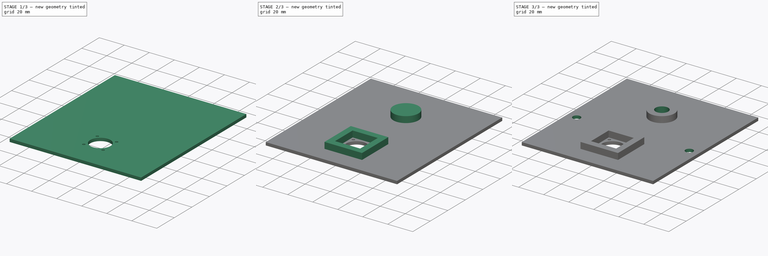
[diagram: build sequence overview — one tinted view per stage of 3, left to right]
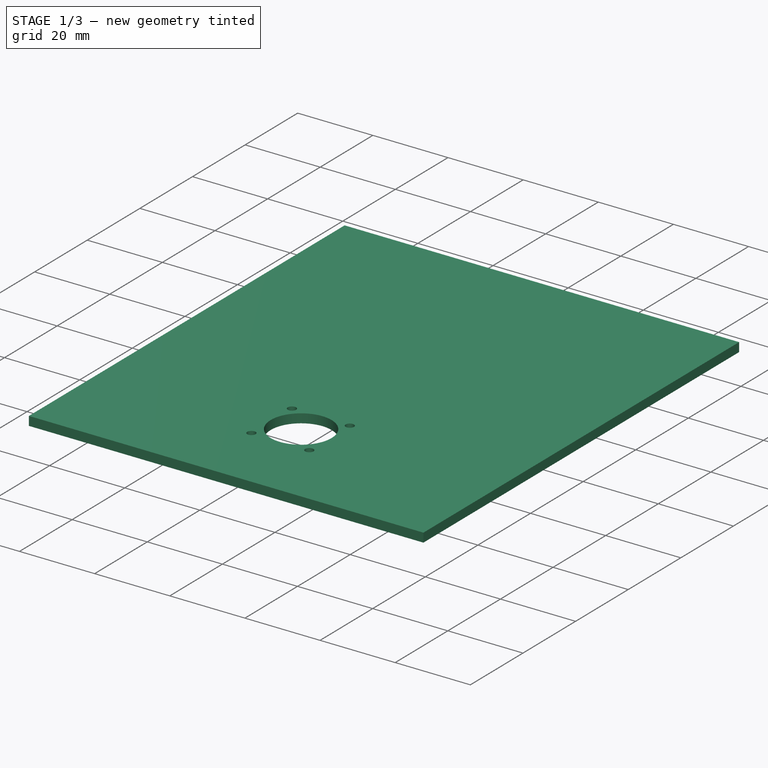
[diagram: stage 1 of 3 — iso view after this stage's code; geometry added in this stage tinted green]
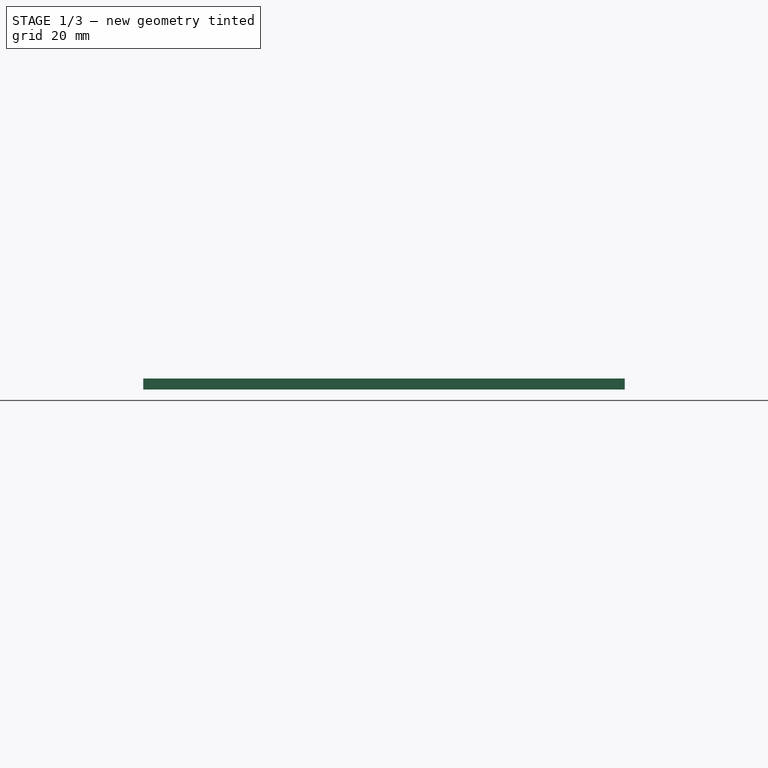
[diagram: stage 1 of 3 — front view after this stage's code; geometry added in this stage tinted green]
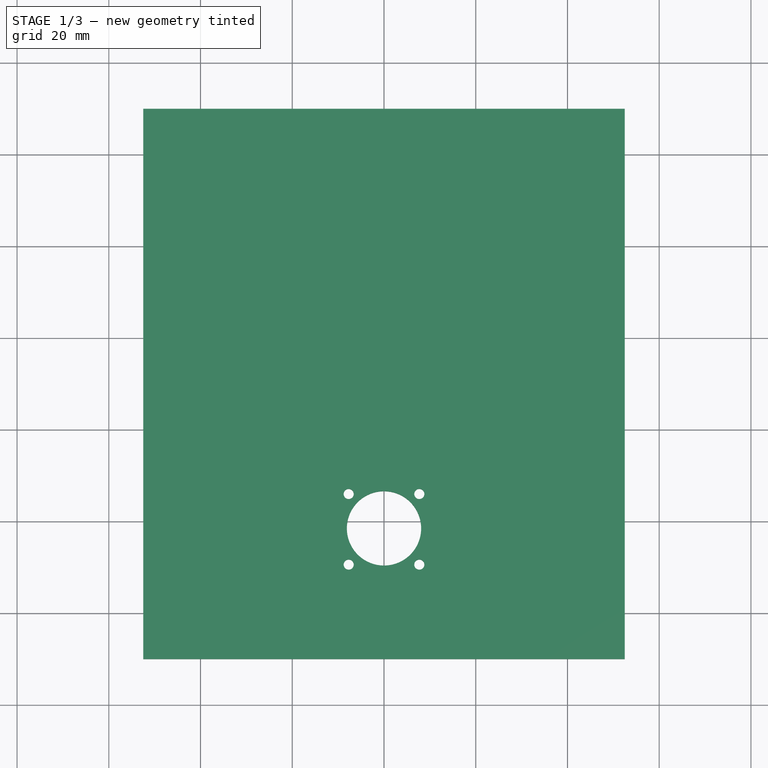
[diagram: stage 1 of 3 — top view after this stage's code; geometry added in this stage tinted green]
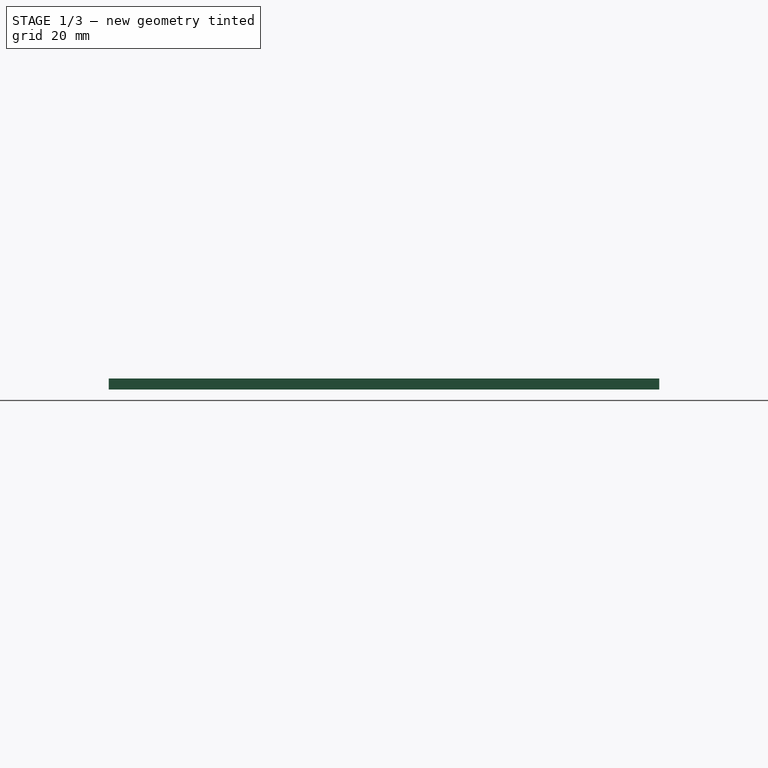
[diagram: stage 1 of 3 — right view after this stage's code; geometry added in this stage tinted green]
FCSTD DOCUMENT  (FreeCAD 0.16R6706 (Git))
Label: LidarBase2
License: All rights reserved
LicenseURL: http://en.wikipedia.org/wiki/All_rights_reserved
objects: Sketcher::SketchObject×7, PartDesign::Pocket×4, PartDesign::Pad×3
note: 21 computed .brp shape members not serialized (recipe doc carries the construction recipe); baked Part::Feature solids carry a one-line shape summary decoded from their .brp

FEATURE [Sketcher::SketchObject] Sketch  label="Basis"
  sketch-geometry (4):
    g0: LineSegment StartX=-52.5 StartY=50 StartZ=0 EndX=52.5 EndY=50 EndZ=0
    g1: LineSegment StartX=52.5 StartY=50 StartZ=0 EndX=52.5 EndY=-70 EndZ=0
    g2: LineSegment StartX=52.5 StartY=-70 StartZ=0 EndX=-52.5 EndY=-70 EndZ=0
    g3: LineSegment StartX=-52.5 StartY=-70 StartZ=0 EndX=-52.5 EndY=50 EndZ=0
  constraints (12):
    c: Coincident(g0,g1)
    c: Coincident(g1,g2)
    c: Coincident(g2,g3)
    c: Coincident(g3,g0)
    c: Horizontal(g0)
    c: Horizontal(g2)
    c: Vertical(g1)
    c: Vertical(g3)
    c: Symmetric(g0,g0,g-2)
    c: DistanceX(g0,g0) = 105
    c: DistanceY(g-1,g0) = 50
    c: DistanceY(g2,g-1) = 70
FEATURE [PartDesign::Pad] Pad
  Length = 2.4
  Length2 = 100
  Sketch = -> Sketch
  Type = 0
FEATURE [Sketcher::SketchObject] Sketch001  label="Motorbefestigung"
  Placement = pos=(0,0,2.4) rot=(0,0,1;0rad)
  Support = -> Pad [Face6]
  sketch-geometry (5):
    g0: Circle CenterX=0 CenterY=-41.5 CenterZ=0 NormalX=0 NormalY=0 NormalZ=1 Radius=8.1
    g1: Circle CenterX=-7.7 CenterY=-34 CenterZ=0 NormalX=0 NormalY=0 NormalZ=1 Radius=1.1
    g2: Circle CenterX=7.7 CenterY=-34 CenterZ=0 NormalX=0 NormalY=0 NormalZ=1 Radius=1.1
    g3: Circle CenterX=-7.7 CenterY=-49.4 CenterZ=0 NormalX=0 NormalY=0 NormalZ=1 Radius=1.1
    g4: Circle CenterX=7.7 CenterY=-49.4 CenterZ=0 NormalX=0 NormalY=0 NormalZ=1 Radius=1.1
  constraints (13):
    c: PointOnObject(g0,g-2)
    c: Radius(g0) = 8.1
    c: Radius(g2) = 1.1
    c: Equal(g2,g4)
    c: Equal(g2,g1)
    c: Equal(g2,g3)
    c: Symmetric(g3,g4,g-2)
    c: DistanceX(g1,g2) = 15.4
    c: DistanceX(g3,g4) = 15.4
    c: DistanceY(g4,g2) = 15.4
    c: DistanceY(g2,g-1) = 34
    c: DistanceY(g0,g-1) = 41.5
    c: Symmetric(g1,g2,g-2)
FEATURE [PartDesign::Pocket] Pocket
  Length = 5
  Sketch = -> Sketch001
  Type = 0
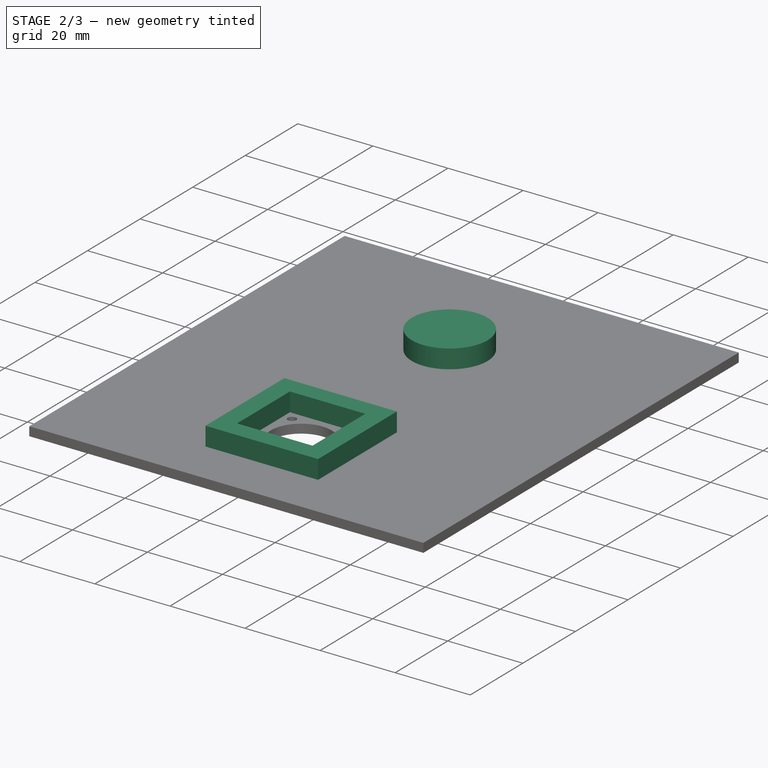
[diagram: stage 2 of 3 — iso view after this stage's code; geometry added in this stage tinted green]
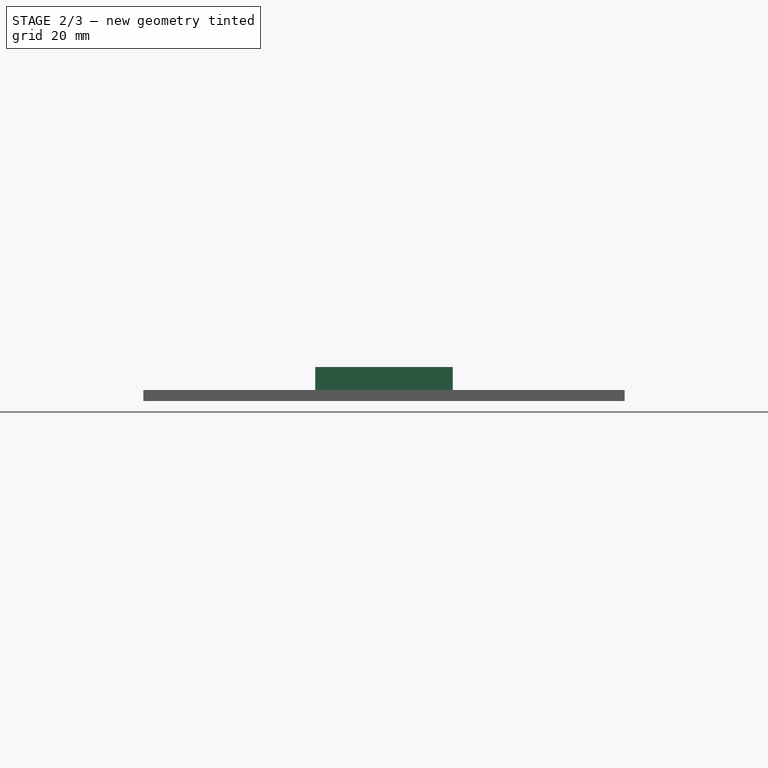
[diagram: stage 2 of 3 — front view after this stage's code; geometry added in this stage tinted green]
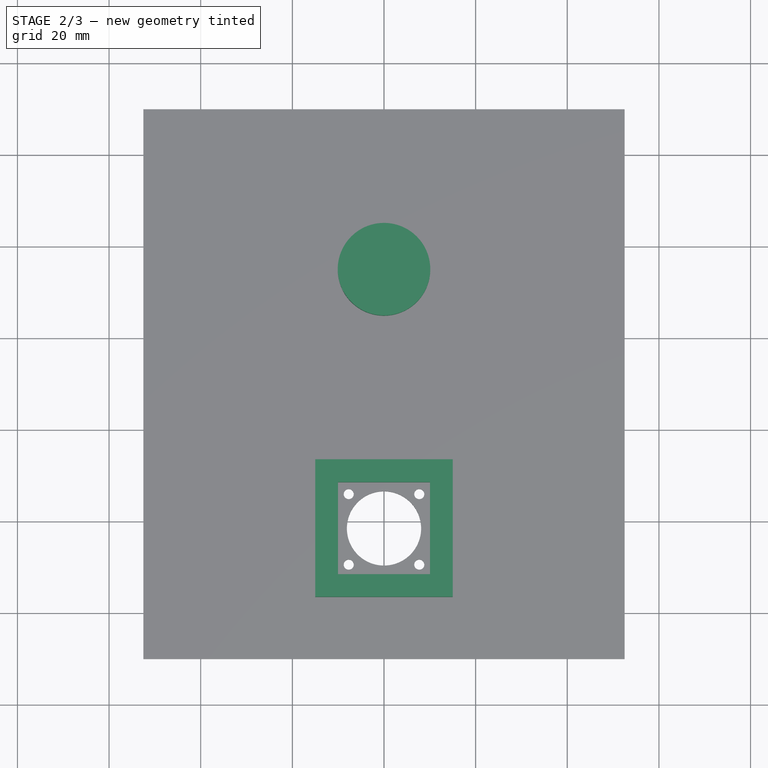
[diagram: stage 2 of 3 — top view after this stage's code; geometry added in this stage tinted green]
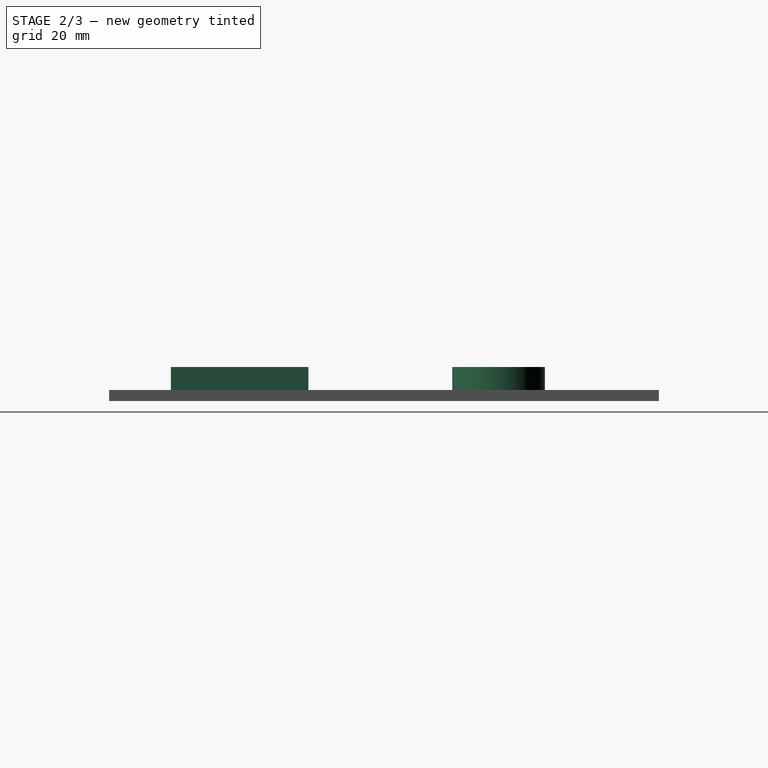
[diagram: stage 2 of 3 — right view after this stage's code; geometry added in this stage tinted green]
FEATURE [Sketcher::SketchObject] Sketch002  label="Motorrahmen"
  Placement = pos=(0,0,2.4) rot=(0,0,1;0rad)
  Support = -> Pocket [Face5]
  sketch-geometry (4):
    g0: LineSegment StartX=-15 StartY=-26.5 StartZ=0 EndX=15 EndY=-26.5 EndZ=0
    g1: LineSegment StartX=15 StartY=-26.5 StartZ=0 EndX=15 EndY=-56.5 EndZ=0
    g2: LineSegment StartX=15 StartY=-56.5 StartZ=0 EndX=-15 EndY=-56.5 EndZ=0
    g3: LineSegment StartX=-15 StartY=-56.5 StartZ=0 EndX=-15 EndY=-26.5 EndZ=0
  constraints (12):
    c: Coincident(g0,g1)
    c: Coincident(g1,g2)
    c: Coincident(g2,g3)
    c: Coincident(g3,g0)
    c: Horizontal(g0)
    c: Horizontal(g2)
    c: Vertical(g1)
    c: Vertical(g3)
    c: Symmetric(g0,g0,g-2)
    c: Equal(g0,g1)
    c: DistanceX(g0,g0) = 30
    c: DistanceY(g0,g-1) = 26.5
FEATURE [PartDesign::Pad] Pad001
  Length = 5
  Length2 = 100
  Sketch = -> Sketch002
  Type = 0
FEATURE [Sketcher::SketchObject] Sketch003  label="Motorausschnitt"
  Placement = pos=(0,0,7.4) rot=(0,0,1;0rad)
  Support = -> Pad001 [Face21]
  sketch-geometry (4):
    g0: LineSegment StartX=-10.05 StartY=-31.45 StartZ=0 EndX=10.05 EndY=-31.45 EndZ=0
    g1: LineSegment StartX=10.05 StartY=-31.45 StartZ=0 EndX=10.05 EndY=-51.55 EndZ=0
    g2: LineSegment StartX=10.05 StartY=-51.55 StartZ=0 EndX=-10.05 EndY=-51.55 EndZ=0
    g3: LineSegment StartX=-10.05 StartY=-51.55 StartZ=0 EndX=-10.05 EndY=-31.45 EndZ=0
  constraints (12):
    c: Coincident(g0,g1)
    c: Coincident(g1,g2)
    c: Coincident(g2,g3)
    c: Coincident(g3,g0)
    c: Horizontal(g0)
    c: Horizontal(g2)
    c: Vertical(g1)
    c: Vertical(g3)
    c: Symmetric(g0,g0,g-2)
    c: Equal(g0,g1)
    c: DistanceX(g0,g0) = 20.1
    c: DistanceY(g0,g-1) = 31.45
FEATURE [PartDesign::Pocket] Pocket001
  Length = 5
  Sketch = -> Sketch003
  Type = 0
FEATURE [Sketcher::SketchObject] Sketch004  label="Achspolster"
  Placement = pos=(0,0,2.4) rot=(0,0,1;0rad)
  Support = -> Pocket001 [Face5]
  sketch-geometry (1):
    g0: Circle CenterX=0 CenterY=15 CenterZ=0 NormalX=0 NormalY=0 NormalZ=1 Radius=10.1
  constraints (3):
    c: Radius(g0) = 10.1
    c: DistanceY(g-1,g0) = 15
    c: PointOnObject(g0,g-2)
FEATURE [PartDesign::Pad] Pad002
  Length = 5
  Length2 = 100
  Sketch = -> Sketch004
  Type = 0
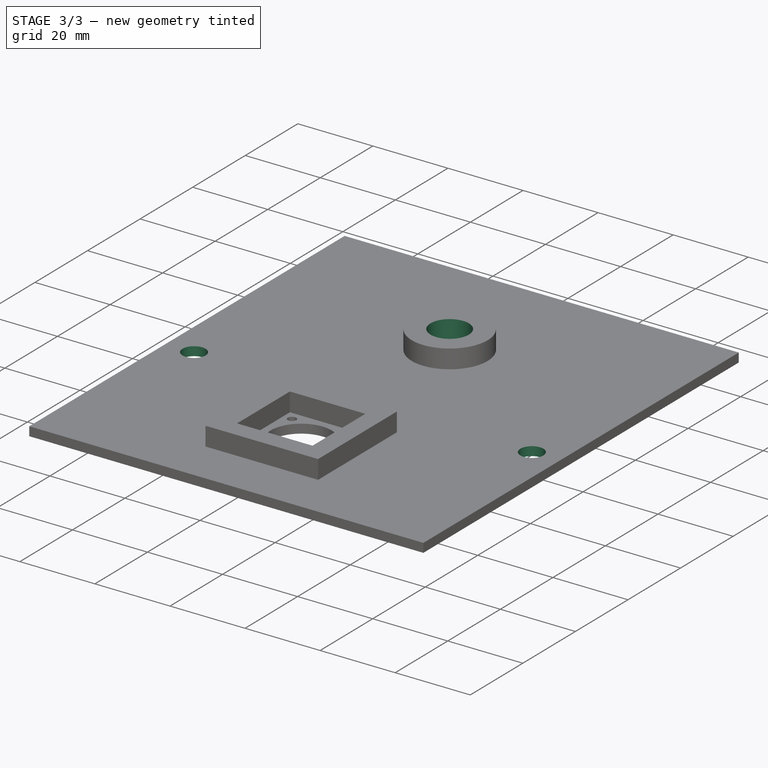
[diagram: stage 3 of 3 — iso view after this stage's code; geometry added in this stage tinted green]
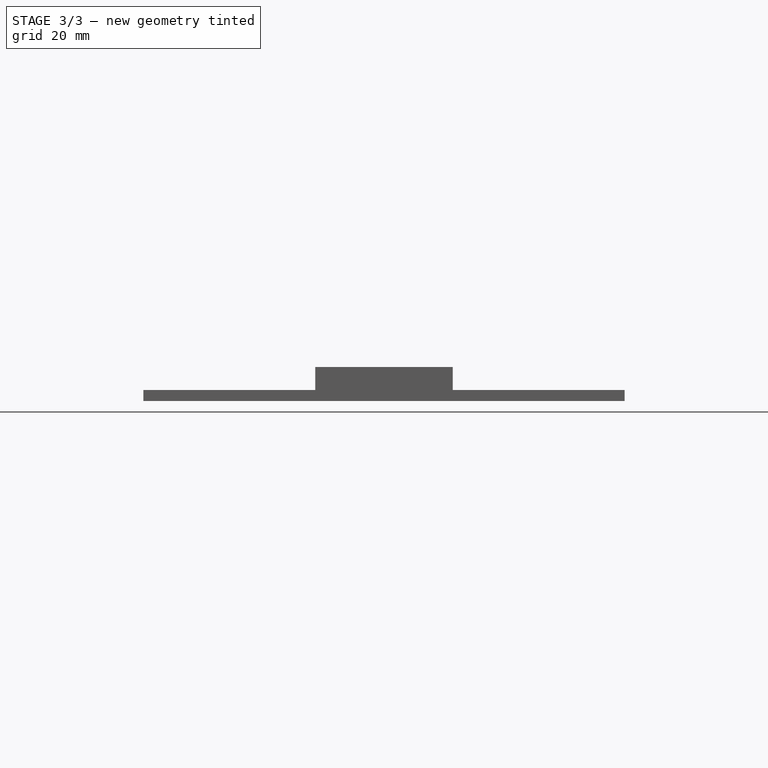
[diagram: stage 3 of 3 — front view after this stage's code; geometry added in this stage tinted green]
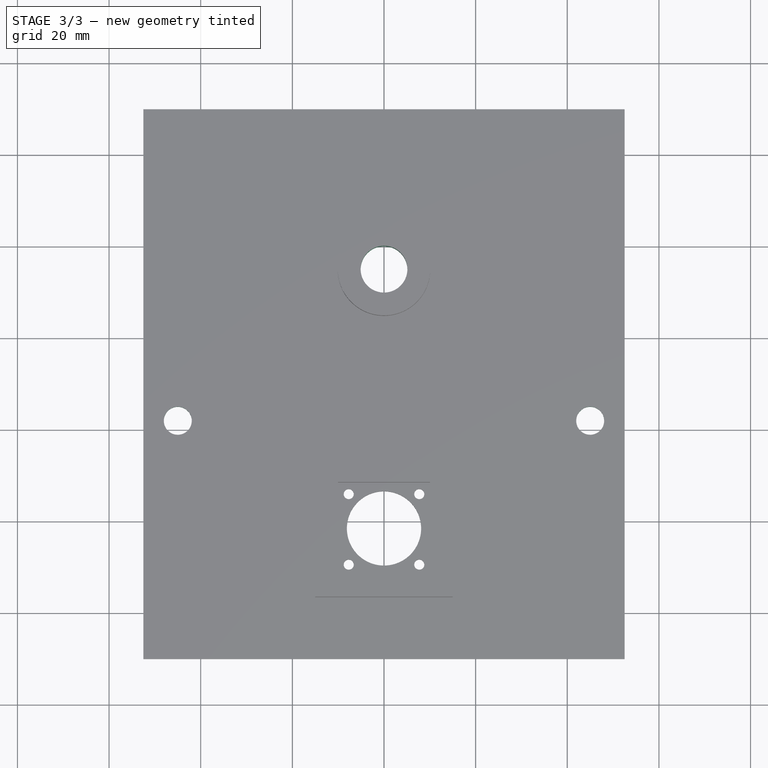
[diagram: stage 3 of 3 — top view after this stage's code; geometry added in this stage tinted green]
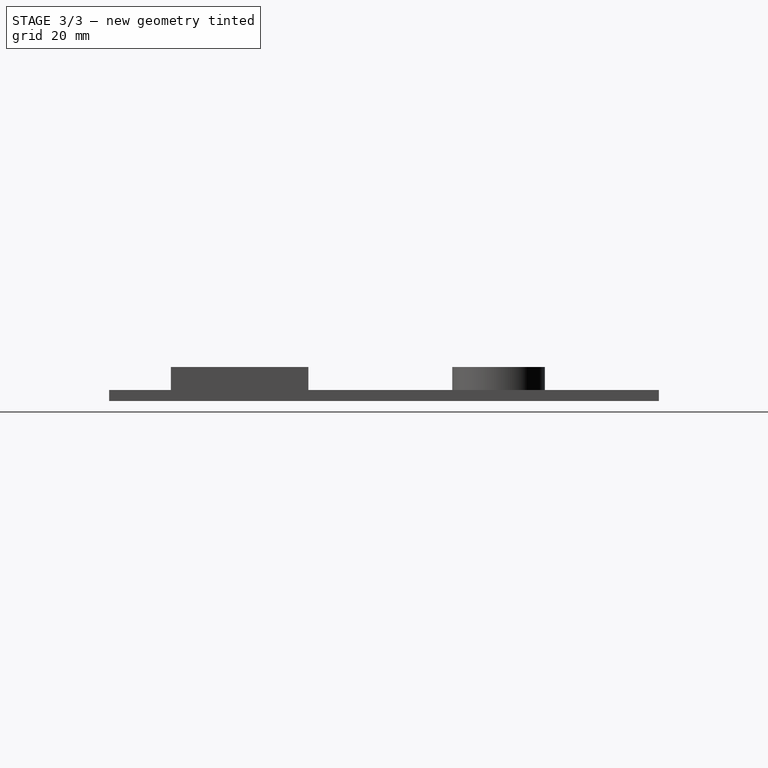
[diagram: stage 3 of 3 — right view after this stage's code; geometry added in this stage tinted green]
FEATURE [Sketcher::SketchObject] Sketch005  label="Achsdurchführung"
  Placement = pos=(0,0,7.4) rot=(0,0,1;0rad)
  Support = -> Pad002 [Face18]
  sketch-geometry (1):
    g0: Circle CenterX=0 CenterY=15 CenterZ=0 NormalX=0 NormalY=0 NormalZ=1 Radius=5.1
  constraints (3):
    c: Radius(g0) = 5.1
    c: DistanceY(g-1,g0) = 15
    c: PointOnObject(g0,g-2)
FEATURE [PartDesign::Pocket] Pocket002
  Length = 5
  Sketch = -> Sketch005
  Type = 1
FEATURE [Sketcher::SketchObject] Sketch007  label="Montageloecher"
  Placement = pos=(0,0,2.4) rot=(0,0,1;0rad)
  Support = -> Pocket002 [Face5]
  sketch-geometry (2):
    g0: Circle CenterX=-45 CenterY=-18 CenterZ=0 NormalX=0 NormalY=0 NormalZ=1 Radius=3.05
    g1: Circle CenterX=45 CenterY=-18 CenterZ=0 NormalX=0 NormalY=0 NormalZ=1 Radius=3.05
  constraints (5):
    c: Equal(g0,g1)
    c: Symmetric(g0,g1,g-2)
    c: DistanceX(g0,g-1) = 45
    c: DistanceY(g0,g-1) = 18
    c: Radius(g0) = 3.05
FEATURE [PartDesign::Pocket] Pocket003
  Length = 5
  Sketch = -> Sketch007
  Type = 0
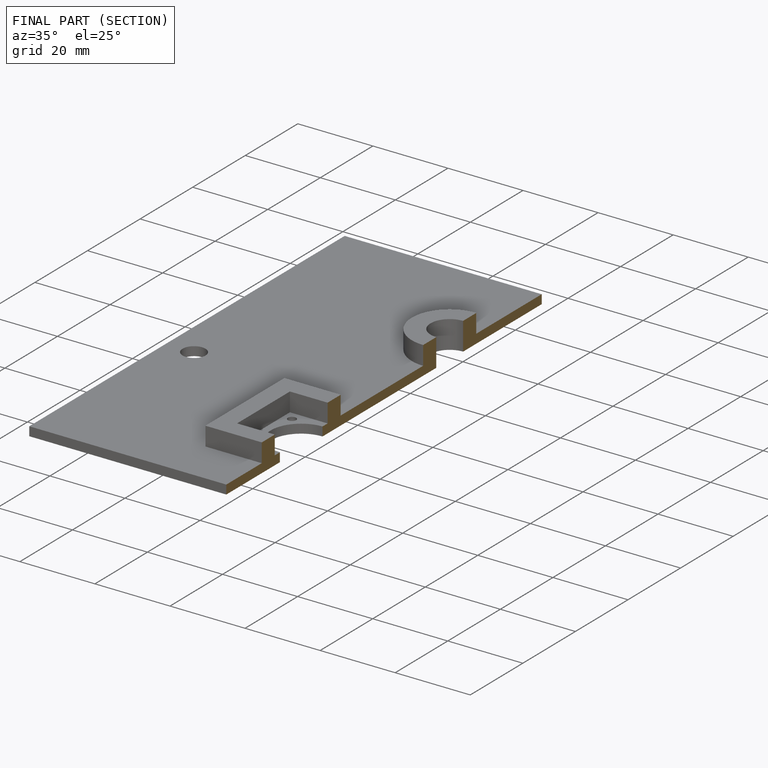
[diagram: finished part — half-section view (interior)]
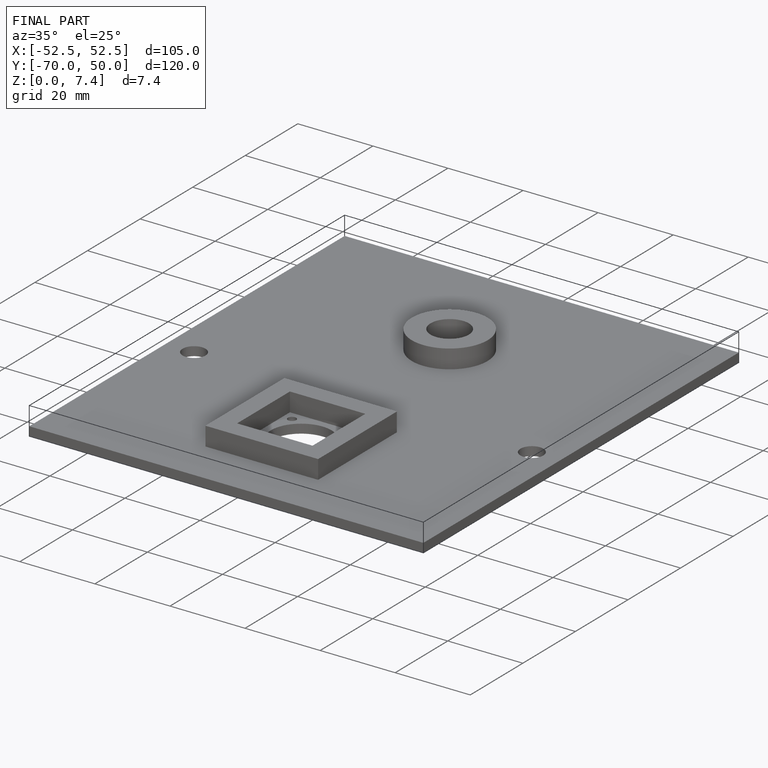
[diagram: finished part — iso view with bounding-box wireframe]
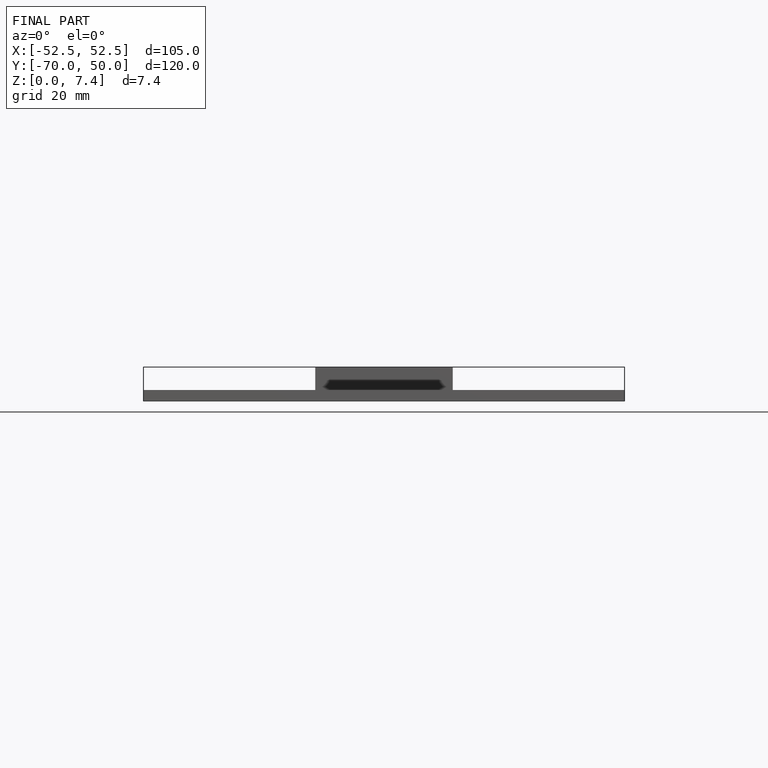
[diagram: finished part — front view with bounding-box wireframe]
